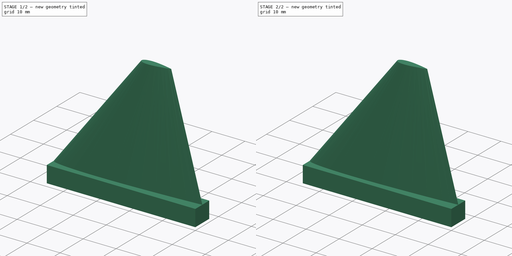
[diagram: build sequence overview — one tinted view per stage of 2, left to right]
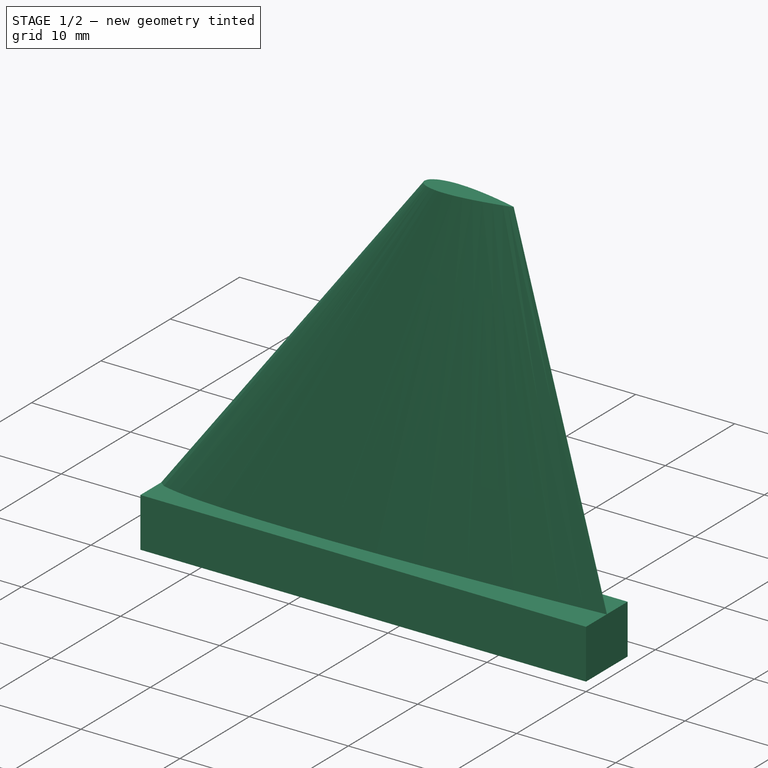
[diagram: stage 1 of 2 — iso view after this stage's code; geometry added in this stage tinted green]
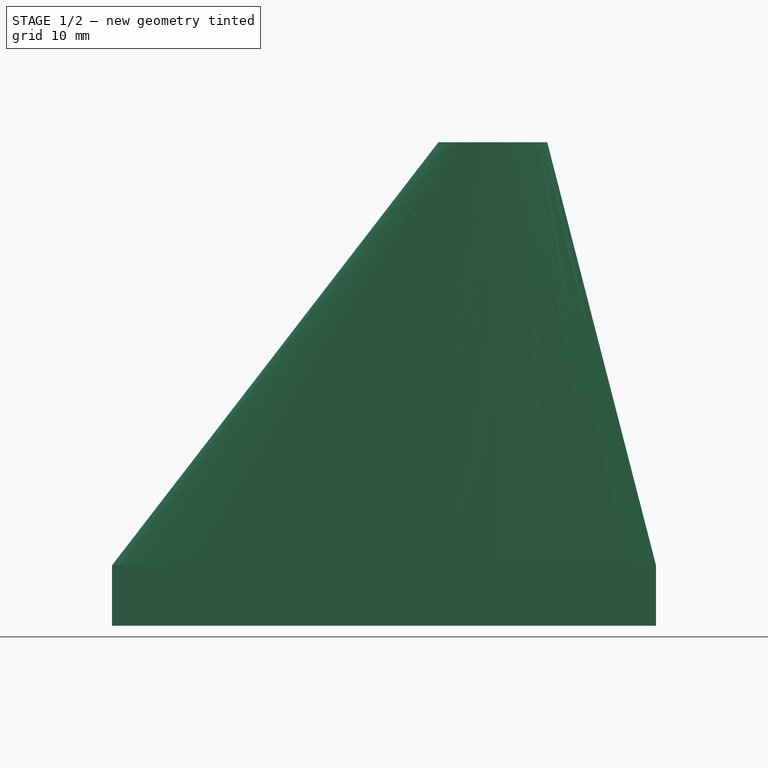
[diagram: stage 1 of 2 — front view after this stage's code; geometry added in this stage tinted green]
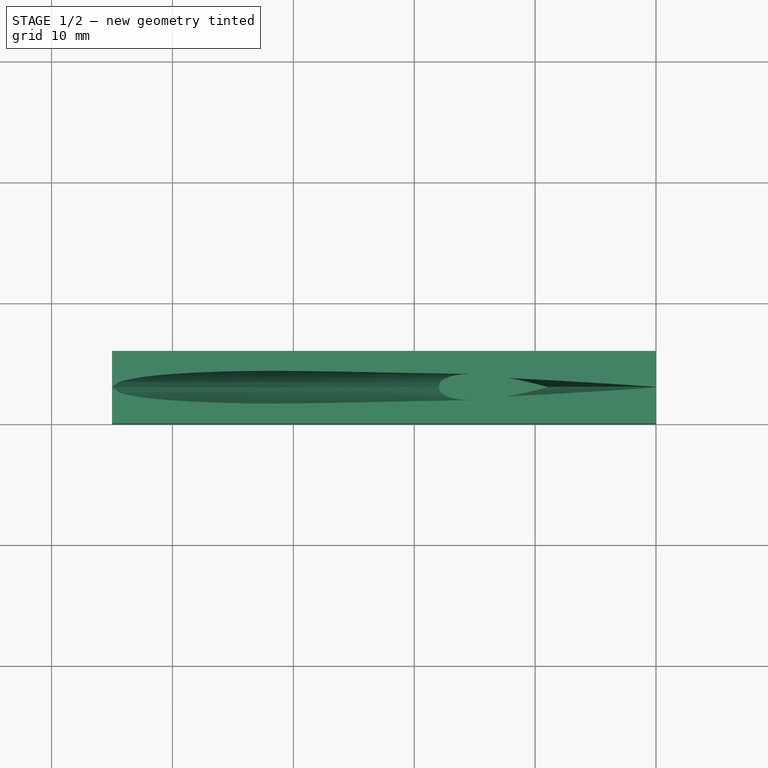
[diagram: stage 1 of 2 — top view after this stage's code; geometry added in this stage tinted green]
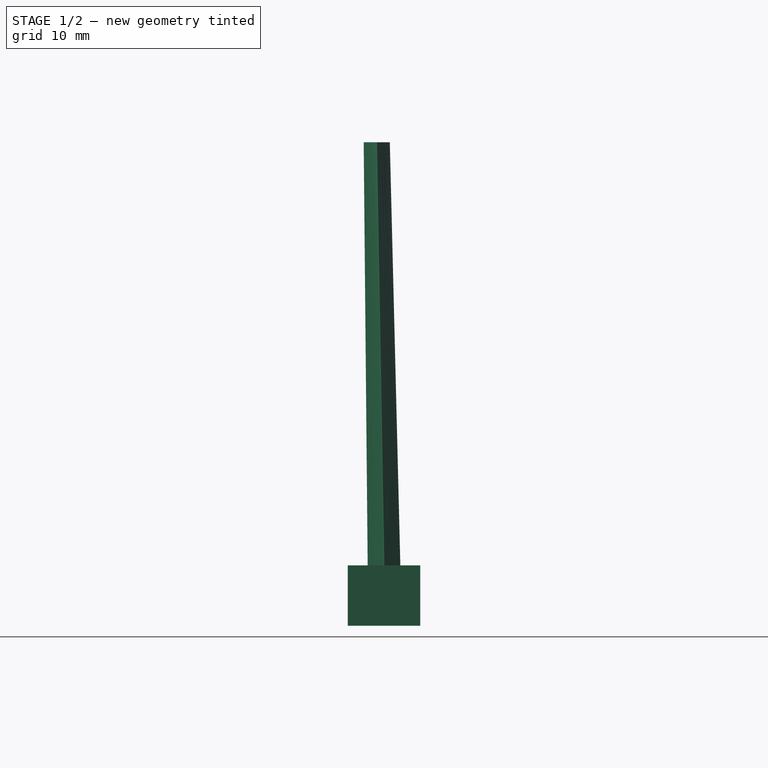
[diagram: stage 1 of 2 — right view after this stage's code; geometry added in this stage tinted green]
FCSTD DOCUMENT  (FreeCAD 0.16R6712 (Git))
Label: Gouverne_Direction
License: All rights reserved
LicenseURL: http://en.wikipedia.org/wiki/All_rights_reserved
objects: Sketcher::SketchObject×1, PartDesign::Pad×1, Part::Part2DObjectPython×1, Part::FeaturePython×1, Part::Loft×1, Part::MultiFuse×1
note: 7 computed .brp shape members not serialized (recipe doc carries the construction recipe); baked Part::Feature solids carry a one-line shape summary decoded from their .brp

FEATURE [Sketcher::SketchObject] Sketch
  sketch-geometry (4):
    g0: LineSegment StartX=-45 StartY=6 StartZ=0 EndX=0 EndY=6 EndZ=0
    g1: LineSegment StartX=0 StartY=6 StartZ=0 EndX=0 EndY=0 EndZ=0
    g2: LineSegment StartX=0 StartY=0 StartZ=0 EndX=-45 EndY=0 EndZ=0
    g3: LineSegment StartX=-45 StartY=0 StartZ=0 EndX=-45 EndY=6 EndZ=0
  constraints (11):
    c: Coincident(g0,g1)
    c: Coincident(g1,g2)
    c: Coincident(g2,g3)
    c: Coincident(g3,g0)
    c: Horizontal(g0)
    c: Horizontal(g2)
    c: Vertical(g1)
    c: Vertical(g3)
    c: DistanceY(g1,g1) = 6
    c: DistanceX(g0,g0) = 45
    c: Coincident(g1,g-1)
FEATURE [PartDesign::Pad] Pad
  Length = 5
  Length2 = 100
  Sketch = -> Sketch
  Type = 0
FEATURE [Part::Part2DObjectPython] DWire  # Draft 2D object (typed FeaturePython)
  ChamferSize = 0
  Closed = true
  End = (0,2.97165,5)
  FilletRadius = 0
  Length = 90.5376
  MakeFace = true
  Placement = pos=(-45,3,5) rot=(0,0,1;0rad)
  Points = (35) [(45,0.02835,0),(42.75,0.18135,0),(40.5,0.3258,0),(36,0.5904,0),(31.5,0.8244,0),(27,1.0269,0),(22.5,1.19115,0),(18,1.3059,0),(13.5,1.35045,0),+26 more]
  Start = (0,3.02835,5)
  Subdivisions = 0
FEATURE [Part::FeaturePython] Scale  # Draft clone (typed FeaturePython)
  Objects = -> [DWire]
  Placement = pos=(-54,3,45) rot=(0,0,1;0rad)
  Scale = (0.2,0.8,0)
FEATURE [Part::Loft] Loft
  Closed = false
  Ruled = false
  Sections = -> [DWire,Scale]
  Solid = true
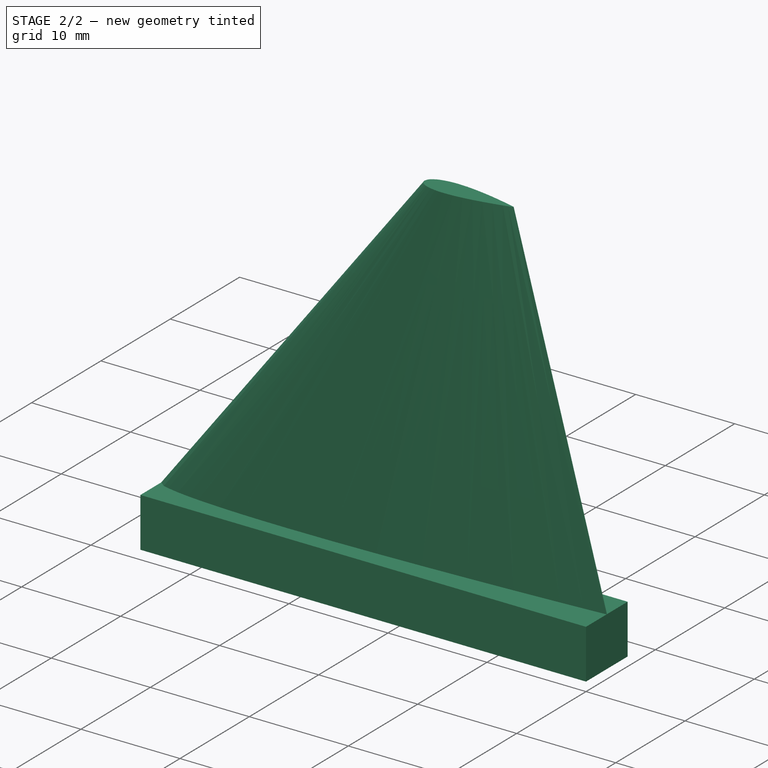
[diagram: stage 2 of 2 — iso view after this stage's code; geometry added in this stage tinted green]
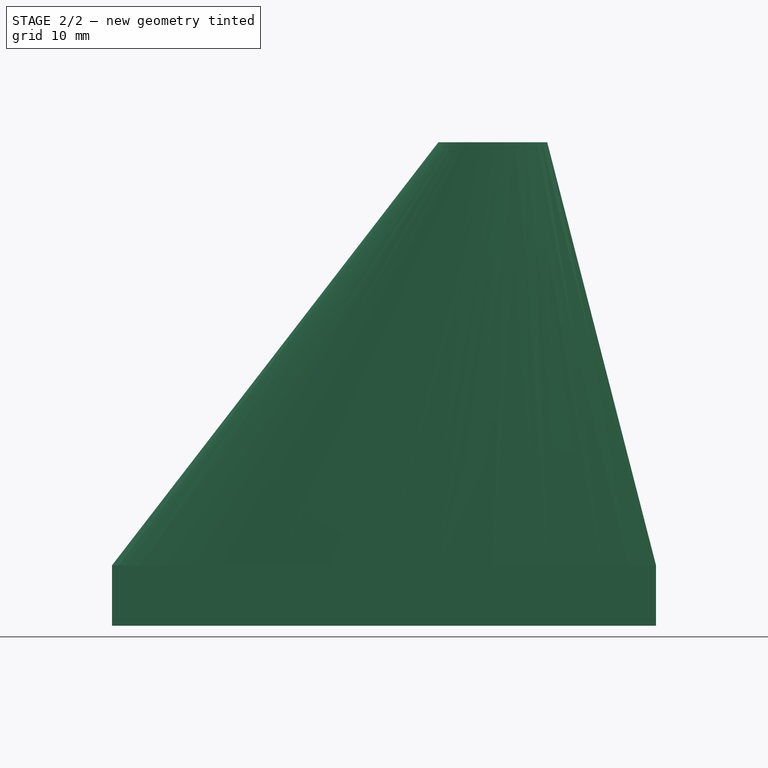
[diagram: stage 2 of 2 — front view after this stage's code; geometry added in this stage tinted green]
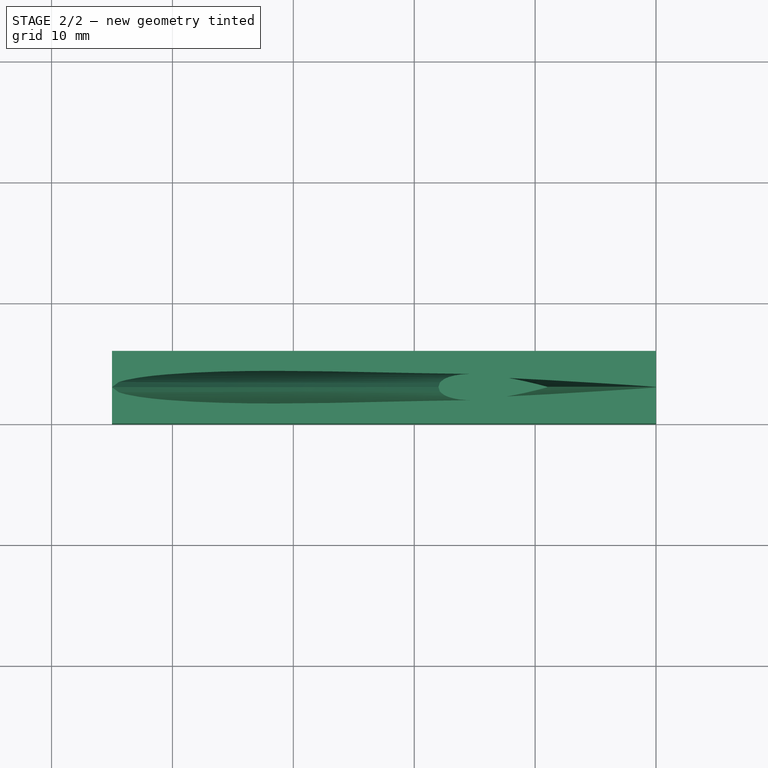
[diagram: stage 2 of 2 — top view after this stage's code; geometry added in this stage tinted green]
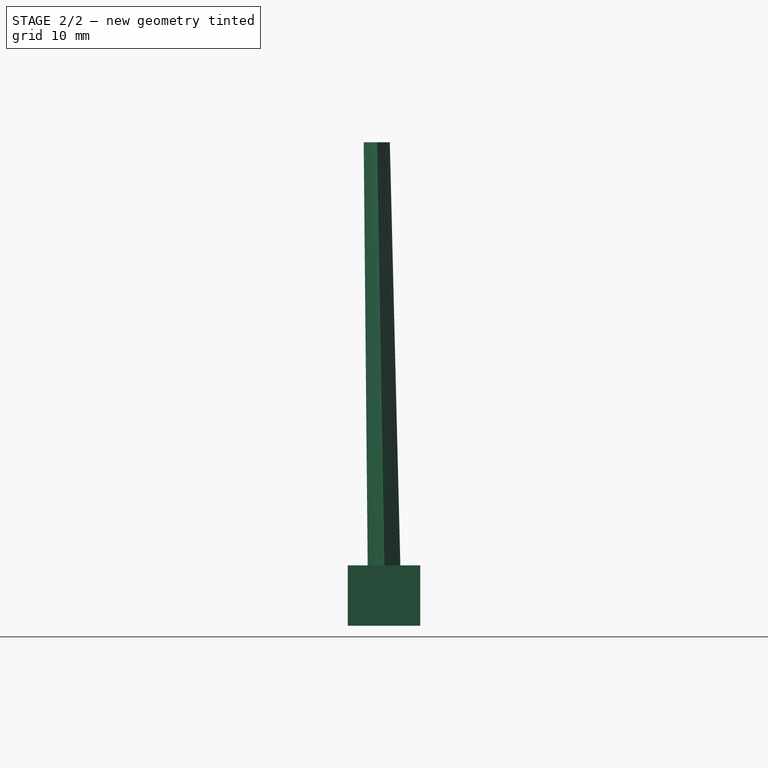
[diagram: stage 2 of 2 — right view after this stage's code; geometry added in this stage tinted green]
FEATURE [Part::MultiFuse] Fusion
  Shapes = -> [Loft,Pad]
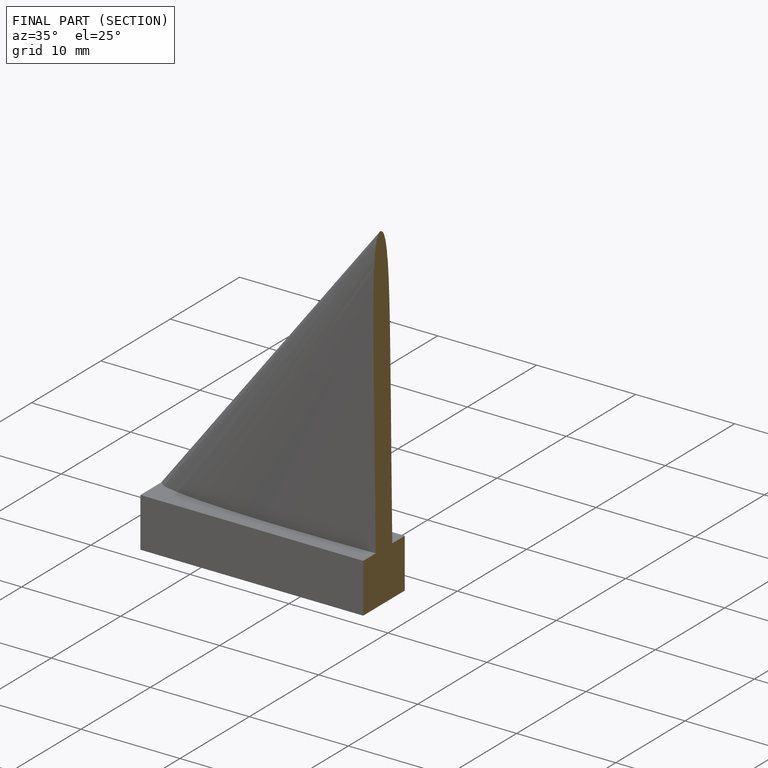
[diagram: finished part — half-section view (interior)]
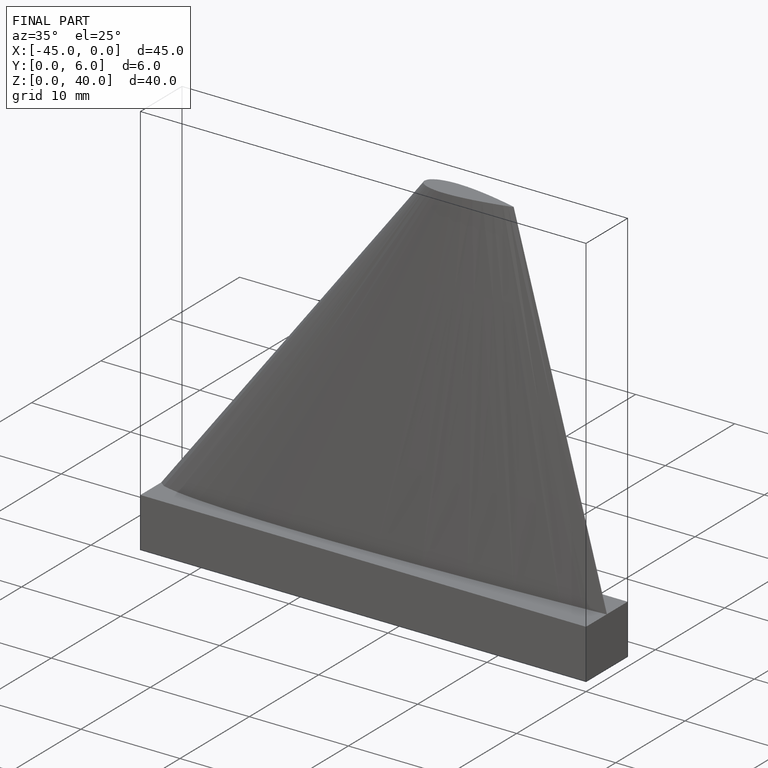
[diagram: finished part — iso view with bounding-box wireframe]
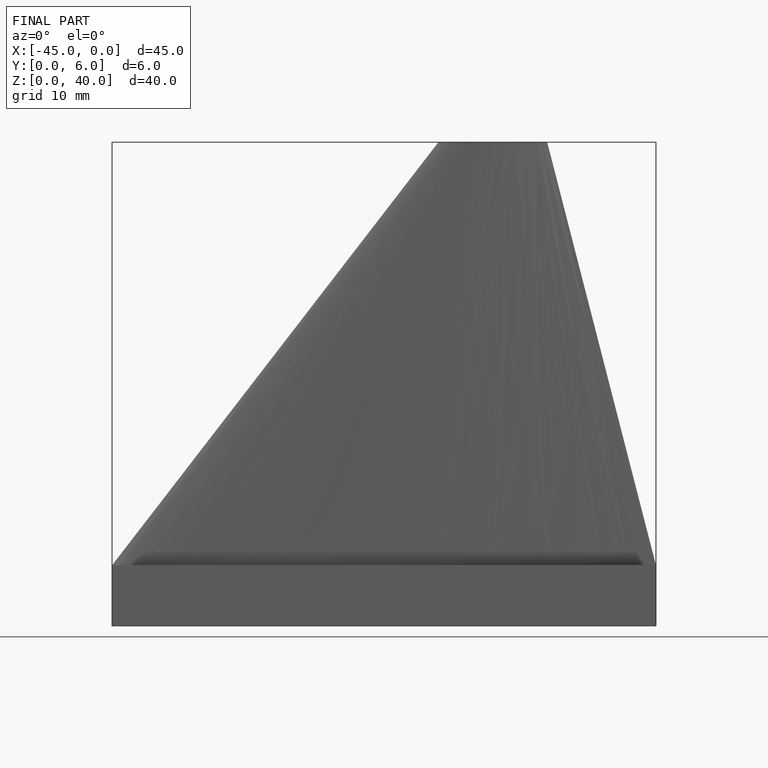
[diagram: finished part — front view with bounding-box wireframe]
